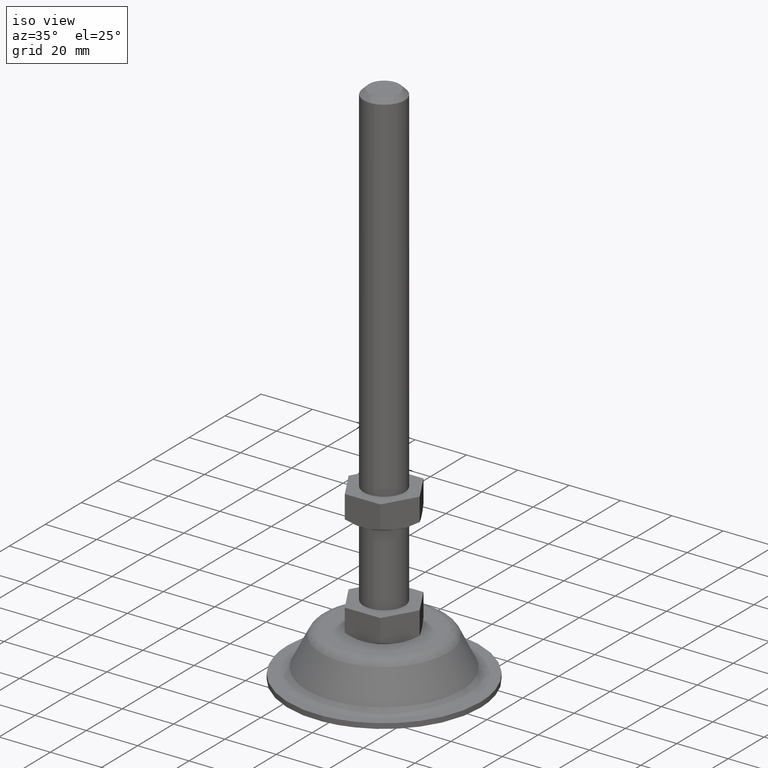
[diagram: clean part render]
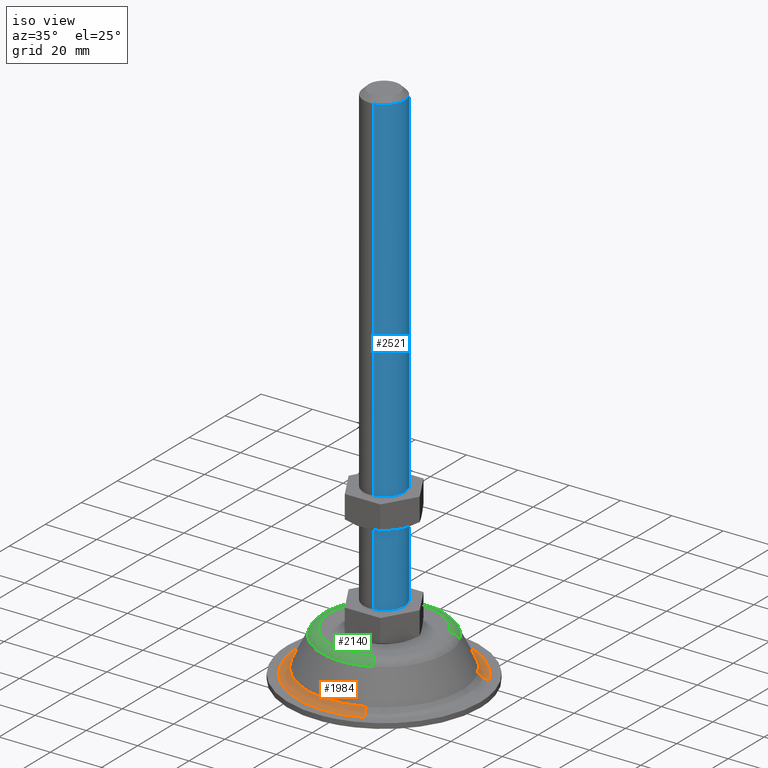
[diagram: same view with three faces highlighted in distinct colors, each labeled with its STEP entity id]
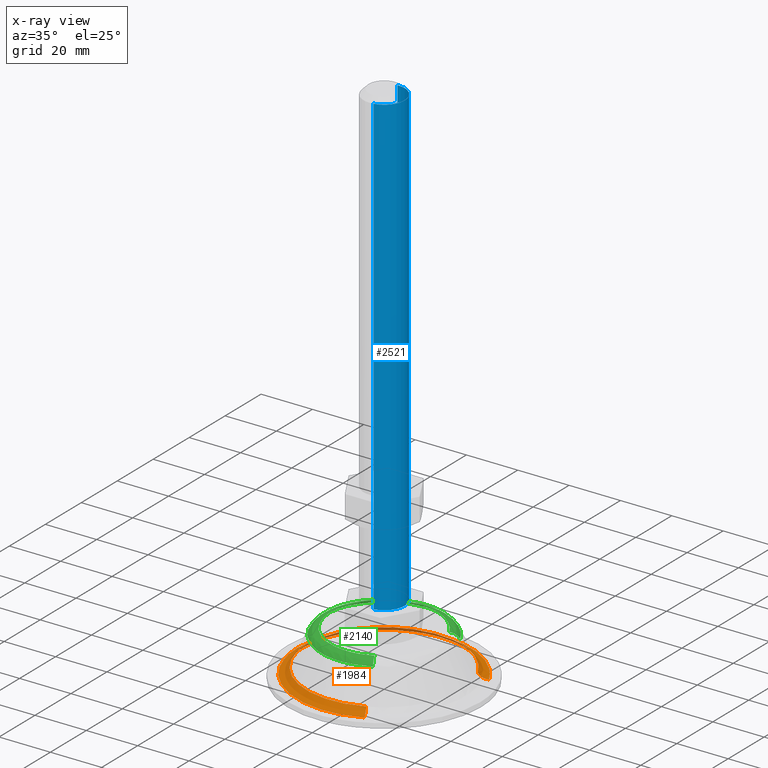
[diagram: x-ray of the same camera — body ghosted, the three highlighted faces saturated]
A machine part, iso view with three faces highlighted in distinct colors.
The next image is the same camera in x-ray (body ghosted, the three faces saturated) — at least one of them is partly hidden behind the body in this view.
Their STEP definitions:

[orange] entity #1984 — the highlighted face is a freeform B-spline surface patch.
#1355=CARTESIAN_POINT('',(13.517878416640830,26.992745340561729,4.237050447106185));
#1356=VERTEX_POINT('',#1355);
#1357=CARTESIAN_POINT('',(26.811445478444831,13.873994691445080,4.237050466238785));
#1358=VERTEX_POINT('',#1357);
#1359=CARTESIAN_POINT('',(13.517878416640825,26.992745340561740,4.237050447106186));
#1360=CARTESIAN_POINT('',(22.298365194898459,22.595506313299008,4.237050467483267));
#1361=CARTESIAN_POINT('',(26.811445478444828,13.873994691445080,4.237050466238785));
#1369=(BOUNDED_CURVE()B_SPLINE_CURVE(2,(#1359,#1360,#1361),.UNSPECIFIED.,.F.,.U.)B_SPLINE_CURVE_WITH_KNOTS((3,3),(0.326127053188864,0.421825371002433),.UNSPECIFIED.)CURVE()GEOMETRIC_REPRESENTATION_ITEM()RATIONAL_B_SPLINE_CURVE((0.875940413655476,0.832104291880675,0.874103860135585))REPRESENTATION_ITEM(''));
#1370=EDGE_CURVE('',#1356,#1358,#1369,.T.);
#1456=CARTESIAN_POINT('',(-8.573977500285421,28.945262947459369,4.237050468563046));
#1457=VERTEX_POINT('',#1456);
#1463=CARTESIAN_POINT('',(-30.188430520198551,0.0,4.237050468566710));
#1464=VERTEX_POINT('',#1463);
#1465=CARTESIAN_POINT('',(-30.188430520198551,0.0,4.237050468566710));
#1466=CARTESIAN_POINT('',(-30.188430520198551,22.542770276702317,4.237050468566709));
#1467=CARTESIAN_POINT('',(-8.573977500285421,28.945262947459366,4.237050468563046));
#1475=(BOUNDED_CURVE()B_SPLINE_CURVE(2,(#1465,#1466,#1467),.UNSPECIFIED.,.F.,.U.)B_SPLINE_CURVE_WITH_KNOTS((3,3),(0.0,0.201641517065248),.UNSPECIFIED.)CURVE()GEOMETRIC_REPRESENTATION_ITEM()RATIONAL_B_SPLINE_CURVE((1.0,0.763762268081328,0.908607213379730))REPRESENTATION_ITEM(''));
#1476=EDGE_CURVE('',#1464,#1457,#1475,.T.);
#1478=CARTESIAN_POINT('',(12.317877356918480,-27.561045604049490,4.237050465337638));
#1479=VERTEX_POINT('',#1478);
#1480=CARTESIAN_POINT('',(12.317877356918483,-27.561045604049482,4.237050465337638));
#1481=CARTESIAN_POINT('',(6.439147325590271,-30.188430520198555,4.237050468566710));
#1482=CARTESIAN_POINT('',(0.0,-30.188430520198551,4.237050468566710));
#1483=CARTESIAN_POINT('',(-30.188430520198555,-30.188430520198555,4.237050468566710));
#1484=CARTESIAN_POINT('',(-30.188430520198551,0.0,4.237050468566710));
#1492=(BOUNDED_CURVE()B_SPLINE_CURVE(2,(#1480,#1481,#1482,#1483,#1484),.UNSPECIFIED.,.F.,.U.)B_SPLINE_CURVE_WITH_KNOTS((3,2,3),(0.680709483576538,0.750000000000000,1.0),.UNSPECIFIED.)CURVE()GEOMETRIC_REPRESENTATION_ITEM()RATIONAL_B_SPLINE_CURVE((0.882641638330957,0.918821110445944,1.0,0.707106781186547,1.0))REPRESENTATION_ITEM(''));
#1493=EDGE_CURVE('',#1479,#1464,#1492,.T.);
#1540=CARTESIAN_POINT('',(-8.573977500285421,28.945262947459366,4.237050468563046));
#1541=CARTESIAN_POINT('',(-4.377114109933091,30.188430520198555,4.237050468566710));
#1542=CARTESIAN_POINT('',(0.0,30.188430520198551,4.237050468566710));
#1543=CARTESIAN_POINT('',(7.136676151169519,30.188430520198551,4.237050468566710));
#1544=CARTESIAN_POINT('',(13.517878416640833,26.992745340561736,4.237050447106185));
#1552=(BOUNDED_CURVE()B_SPLINE_CURVE(2,(#1540,#1541,#1542,#1543,#1544),.UNSPECIFIED.,.F.,.U.)B_SPLINE_CURVE_WITH_KNOTS((3,2,3),(0.201641517065248,0.250000000000000,0.326127053188864),.UNSPECIFIED.)CURVE()GEOMETRIC_REPRESENTATION_ITEM()RATIONAL_B_SPLINE_CURVE((0.908607213379730,0.943344513105220,1.0,0.910811609410923,0.875940413655476))REPRESENTATION_ITEM(''));
#1553=EDGE_CURVE('',#1457,#1356,#1552,.T.);
#1887=CARTESIAN_POINT('',(13.868563357608258,-31.030679725982115,2.005508355514911));
#1888=CARTESIAN_POINT('',(-15.435365784082222,-44.127505239221321,2.005508355514911));
#1889=CARTESIAN_POINT('',(-30.186713145655364,-15.620578840823697,2.005508355514911));
#1890=CARTESIAN_POINT('',(-45.807291986479058,14.566134304831667,2.005508355514911));
#1891=CARTESIAN_POINT('',(-15.620578840823697,30.186713145655364,2.005508355514911));
#1892=CARTESIAN_POINT('',(14.566134304831666,45.807291986479072,2.005508355514911));
#1893=CARTESIAN_POINT('',(30.186713145655364,15.620578840823697,2.005508355514911));
#1894=CARTESIAN_POINT('',(12.730357882329253,-28.483963915914732,1.858963620420696));
#1895=CARTESIAN_POINT('',(-14.168571423674409,-40.505921173260319,1.858963620420695));
#1896=CARTESIAN_POINT('',(-27.709262432333098,-14.338583878173209,1.858963620420696));
#1897=CARTESIAN_POINT('',(-42.047846310506294,13.370678554159884,1.858963620420695));
#1898=CARTESIAN_POINT('',(-14.338583878173209,27.709262432333098,1.858963620420696));
#1899=CARTESIAN_POINT('',(13.370678554159882,42.047846310506294,1.858963620420695));
#1900=CARTESIAN_POINT('',(27.709262432333098,14.338583878173209,1.858963620420696));
#1901=CARTESIAN_POINT('',(12.282242370426843,-27.481312915120213,4.427354544556725));
#1902=CARTESIAN_POINT('',(-13.669830013956551,-39.080090747327844,4.427354544556723));
#1903=CARTESIAN_POINT('',(-26.733881344536748,-13.833857937715386,4.427354544556725));
#1904=CARTESIAN_POINT('',(-40.567739282252127,12.900023406821353,4.427354544556725));
#1905=CARTESIAN_POINT('',(-13.833857937715397,26.733881344536748,4.427354544556725));
#1906=CARTESIAN_POINT('',(12.900023406821353,40.567739282252127,4.427354544556725));
#1907=CARTESIAN_POINT('',(26.733881344536748,13.833857937715397,4.427354544556725));
#1915=(BOUNDED_SURFACE()B_SPLINE_SURFACE(2,2,((#1887,#1894,#1901),(#1888,#1895,#1902),(#1889,#1896,#1903),(#1890,#1897,#1904),(#1891,#1898,#1905),(#1892,#1899,#1906),(#1893,#1900,#1907)),.UNSPECIFIED.,.F.,.F.,.U.)B_SPLINE_SURFACE_WITH_KNOTS((3,2,2,3),(3,3),(0.0,54.061945841300883,110.376472759322600,166.690999677344390),(0.0,5.033719472252810),.UNSPECIFIED.)GEOMETRIC_REPRESENTATION_ITEM()RATIONAL_B_SPLINE_SURFACE(((0.898933571987331,0.737985855779478,0.901312929656294),(0.661043326759624,0.542688181205107,0.662793020572444),(0.919619680268002,0.754968262264206,0.922053791315759),(0.650269312030109,0.533843177827644,0.651990488458139),(0.919619680268002,0.754968262264206,0.922053791315759),(0.650269312030109,0.533843177827644,0.651990488458139),(0.919619680268002,0.754968262264206,0.922053791315759)))REPRESENTATION_ITEM('')SURFACE());
#1916=CARTESIAN_POINT('',(13.782938127036390,-30.839094696865100,2.000000000000201));
#1917=VERTEX_POINT('',#1916);
#1918=CARTESIAN_POINT('',(-33.778974900876548,0.0,2.000000000000200));
#1919=VERTEX_POINT('',#1918);
#1920=CARTESIAN_POINT('',(13.782938127036397,-30.839094696865104,2.000000000000200));
#1921=CARTESIAN_POINT('',(7.205005101256055,-33.778974900876541,2.000000000000200));
#1922=CARTESIAN_POINT('',(0.0,-33.778974900876548,2.000000000000200));
#1923=CARTESIAN_POINT('',(-33.778974900876555,-33.778974900876555,2.000000000000199));
#1924=CARTESIAN_POINT('',(-33.778974900876548,0.0,2.000000000000200));
#1932=(BOUNDED_CURVE()B_SPLINE_CURVE(2,(#1920,#1921,#1922,#1923,#1924),.UNSPECIFIED.,.F.,.U.)B_SPLINE_CURVE_WITH_KNOTS((3,2,3),(0.680709483575723,0.750000000000000,1.0),.UNSPECIFIED.)CURVE()GEOMETRIC_REPRESENTATION_ITEM()RATIONAL_B_SPLINE_CURVE((0.882641638330106,0.918821110444989,1.0,0.707106781186548,1.0))REPRESENTATION_ITEM(''));
#1933=EDGE_CURVE('',#1917,#1919,#1932,.T.);
#1934=ORIENTED_EDGE('',*,*,#1933,.F.);
#1935=CARTESIAN_POINT('',(13.782938127036395,-30.839094696865093,2.000000000000201));
#1936=CARTESIAN_POINT('',(12.766055532007075,-28.563836813024508,2.000000004023359));
#1937=CARTESIAN_POINT('',(12.317877356918480,-27.561045604049486,4.237050465337639));
#1945=(BOUNDED_CURVE()B_SPLINE_CURVE(2,(#1935,#1936,#1937),.UNSPECIFIED.,.F.,.U.)B_SPLINE_CURVE_WITH_KNOTS((3,3),(-1.645059918489039,-0.344443062699389),.UNSPECIFIED.)CURVE()GEOMETRIC_REPRESENTATION_ITEM()RATIONAL_B_SPLINE_CURVE((0.884983933083280,0.752043508673971,0.887147264110127))REPRESENTATION_ITEM(''));
#1946=EDGE_CURVE('',#1917,#1479,#1945,.T.);
#1947=ORIENTED_EDGE('',*,*,#1946,.T.);
#1948=ORIENTED_EDGE('',*,*,#1493,.T.);
#1949=ORIENTED_EDGE('',*,*,#1476,.T.);
#1950=ORIENTED_EDGE('',*,*,#1553,.T.);
#1951=ORIENTED_EDGE('',*,*,#1370,.T.);
#1952=CARTESIAN_POINT('',(30.000338812921282,15.524136576821681,2.000000000000201));
#1953=VERTEX_POINT('',#1952);
#1954=CARTESIAN_POINT('',(30.000338812921278,15.524136576821679,2.000000000000201));
#1955=CARTESIAN_POINT('',(27.786962961888104,14.378791211844526,2.000000000150779));
#1956=CARTESIAN_POINT('',(26.811445478444828,13.873994691445091,4.237050466238785));
#1964=(BOUNDED_CURVE()B_SPLINE_CURVE(2,(#1954,#1955,#1956),.UNSPECIFIED.,.F.,.U.)B_SPLINE_CURVE_WITH_KNOTS((3,3),(-1.645059920397666,-0.344443062081343),.UNSPECIFIED.)CURVE()GEOMETRIC_REPRESENTATION_ITEM()RATIONAL_B_SPLINE_CURVE((0.905349035017068,0.769349407237079,0.907562147986131))REPRESENTATION_ITEM(''));
#1965=EDGE_CURVE('',#1953,#1358,#1964,.T.);
#1966=ORIENTED_EDGE('',*,*,#1965,.F.);
#1967=CARTESIAN_POINT('',(-33.778974900876548,0.0,2.000000000000200));
#1968=CARTESIAN_POINT('',(-33.778974900876555,33.778974900876555,2.000000000000199));
#1969=CARTESIAN_POINT('',(0.0,33.778974900876548,2.000000000000200));
#1970=CARTESIAN_POINT('',(20.554092052395141,33.778974900876548,2.000000000000200));
#1971=CARTESIAN_POINT('',(30.000338812921271,15.524136576821681,2.000000000000201));
#1979=(BOUNDED_CURVE()B_SPLINE_CURVE(2,(#1967,#1968,#1969,#1970,#1971),.UNSPECIFIED.,.F.,.U.)B_SPLINE_CURVE_WITH_KNOTS((3,2,3),(0.0,0.250000000000000,0.421825371003232),.UNSPECIFIED.)CURVE()GEOMETRIC_REPRESENTATION_ITEM()RATIONAL_B_SPLINE_CURVE((1.0,0.707106781186548,1.0,0.798694056052191,0.874103860136287))REPRESENTATION_ITEM(''));
#1980=EDGE_CURVE('',#1919,#1953,#1979,.T.);
#1981=ORIENTED_EDGE('',*,*,#1980,.F.);
#1982=EDGE_LOOP('',(#1934,#1947,#1948,#1949,#1950,#1951,#1966,#1981));
#1983=FACE_OUTER_BOUND('',#1982,.T.);
#1984=ADVANCED_FACE('',(#1983),#1915,.F.);

[blue] entity #2521 — the highlighted face is a freeform B-spline surface patch.
#2328=CARTESIAN_POINT('',(1.407112721230247,-7.875279918183987,205.999999999999890));
#2329=VERTEX_POINT('',#2328);
#2362=CARTESIAN_POINT('',(-0.488388316792085,7.985078387343545,206.0));
#2363=VERTEX_POINT('',#2362);
#2377=CARTESIAN_POINT('',(-0.488388316792081,7.985078387343545,28.0));
#2378=VERTEX_POINT('',#2377);
#2379=CARTESIAN_POINT('',(-0.488388316792085,7.985078387343545,206.0));
#2380=CARTESIAN_POINT('',(-0.488388316792081,7.985078387343545,28.0));
#2381=QUASI_UNIFORM_CURVE('',1,(#2379,#2380),.UNSPECIFIED.,.F.,.U.);
#2382=EDGE_CURVE('',#2363,#2378,#2381,.T.);
#2399=CARTESIAN_POINT('',(1.407112721230249,-7.875279918183987,27.999999999999989));
#2400=VERTEX_POINT('',#2399);
#2416=CARTESIAN_POINT('',(1.407112721230247,-7.875279918183987,205.999999999999890));
#2417=CARTESIAN_POINT('',(1.407112721230249,-7.875279918183987,27.999999999999989));
#2418=QUASI_UNIFORM_CURVE('',1,(#2416,#2417),.UNSPECIFIED.,.F.,.U.);
#2419=EDGE_CURVE('',#2329,#2400,#2418,.T.);
#2424=CARTESIAN_POINT('',(-0.488388316278856,7.985078387374934,210.450000000000100));
#2425=CARTESIAN_POINT('',(7.496690071096078,8.473466703653790,210.450000000000070));
#2426=CARTESIAN_POINT('',(7.985078387374934,0.488388316278856,210.450000000000100));
#2427=CARTESIAN_POINT('',(8.419984129802099,-6.622257718131118,210.450000000000070));
#2428=CARTESIAN_POINT('',(1.407112720920958,-7.875279918239248,210.450000000000070));
#2429=CARTESIAN_POINT('',(-0.488388316278856,7.985078387374934,23.438749999999999));
#2430=CARTESIAN_POINT('',(7.496690071096078,8.473466703653790,23.438749999999995));
#2431=CARTESIAN_POINT('',(7.985078387374934,0.488388316278856,23.438749999999999));
#2432=CARTESIAN_POINT('',(8.419984129802099,-6.622257718131118,23.438750000000002));
#2433=CARTESIAN_POINT('',(1.407112720920958,-7.875279918239248,23.438749999999995));
#2441=(BOUNDED_SURFACE()B_SPLINE_SURFACE(2,1,((#2424,#2429),(#2425,#2430),(#2426,#2431),(#2427,#2432),(#2428,#2433)),.UNSPECIFIED.,.F.,.F.,.U.)B_SPLINE_SURFACE_WITH_KNOTS((3,2,3),(2,2),(0.0,13.254833995939039,25.449281272202949),(0.0,187.011250000000100),.UNSPECIFIED.)GEOMETRIC_REPRESENTATION_ITEM()RATIONAL_B_SPLINE_SURFACE(((1.0,1.0),(0.707106781186548,0.707106781186548),(1.0,1.0),(0.730538238691624,0.730538238691624),(0.956886118190660,0.956886118190660)))REPRESENTATION_ITEM('')SURFACE());
#2442=CARTESIAN_POINT('',(8.0,0.0,206.0));
#2443=VERTEX_POINT('',#2442);
#2444=CARTESIAN_POINT('',(8.0,0.0,206.0));
#2445=CARTESIAN_POINT('',(8.0,-6.697298226348780,206.000000000000060));
#2446=CARTESIAN_POINT('',(1.407112721230247,-7.875279918183987,205.999999999999940));
#2454=(BOUNDED_CURVE()B_SPLINE_CURVE(2,(#2444,#2445,#2446),.UNSPECIFIED.,.F.,.U.)B_SPLINE_CURVE_WITH_KNOTS((3,3),(0.0,0.219772409014323),.UNSPECIFIED.)CURVE()GEOMETRIC_REPRESENTATION_ITEM()RATIONAL_B_SPLINE_CURVE((1.0,0.742520606869633,0.937736145737720))REPRESENTATION_ITEM(''));
#2455=EDGE_CURVE('',#2443,#2329,#2454,.T.);
#2456=ORIENTED_EDGE('',*,*,#2455,.T.);
#2457=ORIENTED_EDGE('',*,*,#2419,.T.);
#2458=CARTESIAN_POINT('',(8.0,0.0,28.0));
#2459=VERTEX_POINT('',#2458);
#2460=CARTESIAN_POINT('',(8.0,0.0,28.0));
#2461=CARTESIAN_POINT('',(8.0,-6.697298226348780,28.0));
#2462=CARTESIAN_POINT('',(1.407112721230248,-7.875279918183987,27.999999999999993));
#2470=(BOUNDED_CURVE()B_SPLINE_CURVE(2,(#2460,#2461,#2462),.UNSPECIFIED.,.F.,.U.)B_SPLINE_CURVE_WITH_KNOTS((3,3),(0.0,0.219772409014323),.UNSPECIFIED.)CURVE()GEOMETRIC_REPRESENTATION_ITEM()RATIONAL_B_SPLINE_CURVE((1.0,0.742520606869633,0.937736145737720))REPRESENTATION_ITEM(''));
#2471=EDGE_CURVE('',#2459,#2400,#2470,.T.);
#2472=ORIENTED_EDGE('',*,*,#2471,.F.);
#2473=CARTESIAN_POINT('',(-0.488388316792081,7.985078387343545,28.000000000000004));
#2474=CARTESIAN_POINT('',(-0.244422106903376,8.0,28.0));
#2475=CARTESIAN_POINT('',(0.0,8.0,28.0));
#2476=CARTESIAN_POINT('',(8.0,8.0,27.999999999999996));
#2477=CARTESIAN_POINT('',(8.0,0.0,28.0));
#2485=(BOUNDED_CURVE()B_SPLINE_CURVE(2,(#2473,#2474,#2475,#2476,#2477),.UNSPECIFIED.,.F.,.U.)B_SPLINE_CURVE_WITH_KNOTS((3,2,3),(0.739332962219788,0.750000000000000,1.0),.UNSPECIFIED.)CURVE()GEOMETRIC_REPRESENTATION_ITEM()RATIONAL_B_SPLINE_CURVE((0.976072041625665,0.987502787877396,1.0,0.707106781186548,1.0))REPRESENTATION_ITEM(''));
#2486=EDGE_CURVE('',#2378,#2459,#2485,.T.);
#2487=ORIENTED_EDGE('',*,*,#2486,.F.);
#2488=ORIENTED_EDGE('',*,*,#2382,.F.);
#2489=CARTESIAN_POINT('',(0.993024017993458,7.938129710607391,205.999999999828790));
#2490=VERTEX_POINT('',#2489);
#2491=CARTESIAN_POINT('',(-0.488388316792085,7.985078387343545,206.0));
#2492=CARTESIAN_POINT('',(-0.244422106903379,8.0,206.000000000000030));
#2493=CARTESIAN_POINT('',(0.0,8.0,206.0));
#2494=CARTESIAN_POINT('',(0.498439421617135,8.0,205.999999999999970));
#2495=CARTESIAN_POINT('',(0.993024017993458,7.938129710607391,205.999999999828840));
#2503=(BOUNDED_CURVE()B_SPLINE_CURVE(2,(#2491,#2492,#2493,#2494,#2495),.UNSPECIFIED.,.F.,.U.)B_SPLINE_CURVE_WITH_KNOTS((3,2,3),(0.739332962219788,0.750000000000000,0.771473929027365),.UNSPECIFIED.)CURVE()GEOMETRIC_REPRESENTATION_ITEM()RATIONAL_B_SPLINE_CURVE((0.976072041625665,0.987502787877396,1.0,0.974841727226414,0.954005430164757))REPRESENTATION_ITEM(''));
#2504=EDGE_CURVE('',#2363,#2490,#2503,.T.);
#2505=ORIENTED_EDGE('',*,*,#2504,.T.);
#2506=CARTESIAN_POINT('',(0.993024017993458,7.938129710607391,205.999999999828840));
#2507=CARTESIAN_POINT('',(8.0,7.061588798810710,206.000000000000030));
#2508=CARTESIAN_POINT('',(8.0,0.0,206.0));
#2516=(BOUNDED_CURVE()B_SPLINE_CURVE(2,(#2506,#2507,#2508),.UNSPECIFIED.,.F.,.U.)B_SPLINE_CURVE_WITH_KNOTS((3,3),(0.771473929027365,1.0),.UNSPECIFIED.)CURVE()GEOMETRIC_REPRESENTATION_ITEM()RATIONAL_B_SPLINE_CURVE((0.954005430164757,0.732265053960133,1.0))REPRESENTATION_ITEM(''));
#2517=EDGE_CURVE('',#2490,#2443,#2516,.T.);
#2518=ORIENTED_EDGE('',*,*,#2517,.T.);
#2519=EDGE_LOOP('',(#2456,#2457,#2472,#2487,#2488,#2505,#2518));
#2520=FACE_OUTER_BOUND('',#2519,.T.);
#2521=ADVANCED_FACE('',(#2520),#2441,.T.);

[green] entity #2140 — the highlighted face is a freeform B-spline surface patch.
#1372=CARTESIAN_POINT('',(10.983786301912639,21.932624189596130,15.762949531503510));
#1373=VERTEX_POINT('',#1372);
#1379=CARTESIAN_POINT('',(21.925249910871980,10.998499066013810,15.762949531871341));
#1380=VERTEX_POINT('',#1379);
#1381=CARTESIAN_POINT('',(10.983786301912641,21.932624189596130,15.762949531503510));
#1382=CARTESIAN_POINT('',(18.270965896664514,18.283228534836347,15.762949531635718));
#1383=CARTESIAN_POINT('',(21.925249910871987,10.998499066013810,15.762949531871341));
#1391=(BOUNDED_CURVE()B_SPLINE_CURVE(2,(#1381,#1382,#1383),.UNSPECIFIED.,.F.,.U.)B_SPLINE_CURVE_WITH_KNOTS((3,3),(0.326127052926136,0.423769062114753),.UNSPECIFIED.)CURVE()GEOMETRIC_REPRESENTATION_ITEM()RATIONAL_B_SPLINE_CURVE((0.875940413896170,0.831213953432399,0.875845342761837))REPRESENTATION_ITEM(''));
#1392=EDGE_CURVE('',#1373,#1380,#1391,.T.);
#1409=CARTESIAN_POINT('',(10.998499066041690,-21.925249911014529,15.762949531586390));
#1410=VERTEX_POINT('',#1409);
#1424=CARTESIAN_POINT('',(-24.529238988803549,0.0,15.762949531433700));
#1425=VERTEX_POINT('',#1424);
#1426=CARTESIAN_POINT('',(10.998499066041688,-21.925249911014525,15.762949531586390));
#1427=CARTESIAN_POINT('',(5.807507917959460,-24.529238988803549,15.762949531433701));
#1428=CARTESIAN_POINT('',(0.0,-24.529238988803549,15.762949531433700));
#1429=CARTESIAN_POINT('',(-24.529238988803549,-24.529238988803549,15.762949531433700));
#1430=CARTESIAN_POINT('',(-24.529238988803549,0.0,15.762949531433700));
#1438=(BOUNDED_CURVE()B_SPLINE_CURVE(2,(#1426,#1427,#1428,#1429,#1430),.UNSPECIFIED.,.F.,.U.)B_SPLINE_CURVE_WITH_KNOTS((3,2,3),(0.673769062115245,0.750000000000000,1.0),.UNSPECIFIED.)CURVE()GEOMETRIC_REPRESENTATION_ITEM()RATIONAL_B_SPLINE_CURVE((0.875845342762287,0.910689900919063,1.0,0.707106781186547,1.0))REPRESENTATION_ITEM(''));
#1439=EDGE_CURVE('',#1410,#1425,#1438,.T.);
#1441=CARTESIAN_POINT('',(-6.966680266768331,23.519118423755248,15.762949531426941));
#1442=VERTEX_POINT('',#1441);
#1443=CARTESIAN_POINT('',(-24.529238988803549,0.0,15.762949531433700));
#1444=CARTESIAN_POINT('',(-24.529238988803549,18.316851524160139,15.762949531433705));
#1445=CARTESIAN_POINT('',(-6.966680266768331,23.519118423755252,15.762949531426941));
#1453=(BOUNDED_CURVE()B_SPLINE_CURVE(2,(#1443,#1444,#1445),.UNSPECIFIED.,.F.,.U.)B_SPLINE_CURVE_WITH_KNOTS((3,3),(0.0,0.201641517064962),.UNSPECIFIED.)CURVE()GEOMETRIC_REPRESENTATION_ITEM()RATIONAL_B_SPLINE_CURVE((1.0,0.763762268081663,0.908607213379319))REPRESENTATION_ITEM(''));
#1454=EDGE_CURVE('',#1425,#1442,#1453,.T.);
#1556=CARTESIAN_POINT('',(-6.966680266768331,23.519118423755252,15.762949531426941));
#1557=CARTESIAN_POINT('',(-3.556570389197576,24.529238988803552,15.762949531433696));
#1558=CARTESIAN_POINT('',(0.0,24.529238988803549,15.762949531433700));
#1559=CARTESIAN_POINT('',(5.798818660588829,24.529238988803559,15.762949531433698));
#1560=CARTESIAN_POINT('',(10.983786301912641,21.932624189596130,15.762949531503512));
#1568=(BOUNDED_CURVE()B_SPLINE_CURVE(2,(#1556,#1557,#1558,#1559,#1560),.UNSPECIFIED.,.F.,.U.)B_SPLINE_CURVE_WITH_KNOTS((3,2,3),(0.201641517064962,0.250000000000000,0.326127052926136),.UNSPECIFIED.)CURVE()GEOMETRIC_REPRESENTATION_ITEM()RATIONAL_B_SPLINE_CURVE((0.908607213379319,0.943344513104885,1.0,0.910811609718728,0.875940413896170))REPRESENTATION_ITEM(''));
#1569=EDGE_CURVE('',#1442,#1373,#1568,.T.);
#2043=CARTESIAN_POINT('',(9.294642899871809,-18.528652608911848,17.994512284984971));
#2044=CARTESIAN_POINT('',(-9.234009709040031,-27.823295508783666,17.994512284984971));
#2045=CARTESIAN_POINT('',(-18.528652608911848,-9.294642899871811,17.994512284984971));
#2046=CARTESIAN_POINT('',(-27.823295508783666,9.234009709040031,17.994512284984971));
#2047=CARTESIAN_POINT('',(-9.294642899871812,18.528652608911848,17.994512284984971));
#2048=CARTESIAN_POINT('',(9.234009709040029,27.823295508783666,17.994512284984971));
#2049=CARTESIAN_POINT('',(18.528652608911838,9.294642899871812,17.994512284984971));
#2050=CARTESIAN_POINT('',(10.545410726679879,-21.022028934068988,18.140782316382250));
#2051=CARTESIAN_POINT('',(-10.476618207389107,-31.567439660748860,18.140782316382243));
#2052=CARTESIAN_POINT('',(-21.022028934068988,-10.545410726679879,18.140782316382250));
#2053=CARTESIAN_POINT('',(-31.567439660748860,10.476618207389107,18.140782316382243));
#2054=CARTESIAN_POINT('',(-10.545410726679885,21.022028934068988,18.140782316382250));
#2055=CARTESIAN_POINT('',(10.476618207389103,31.567439660748860,18.140782316382243));
#2056=CARTESIAN_POINT('',(21.022028934068988,10.545410726679885,18.140782316382250));
#2057=CARTESIAN_POINT('',(11.037727055620422,-22.003449988207585,15.572285105118571));
#2058=CARTESIAN_POINT('',(-10.965722932587171,-33.041177043828014,15.572285105118565));
#2059=CARTESIAN_POINT('',(-22.003449988207585,-11.037727055620422,15.572285105118571));
#2060=CARTESIAN_POINT('',(-33.041177043828014,10.965722932587168,15.572285105118565));
#2061=CARTESIAN_POINT('',(-11.037727055620433,22.003449988207585,15.572285105118571));
#2062=CARTESIAN_POINT('',(10.965722932587166,33.041177043828014,15.572285105118565));
#2063=CARTESIAN_POINT('',(22.003449988207585,11.037727055620433,15.572285105118571));
#2071=(BOUNDED_SURFACE()B_SPLINE_SURFACE(2,2,((#2043,#2050,#2057),(#2044,#2051,#2058),(#2045,#2052,#2059),(#2046,#2053,#2060),(#2047,#2054,#2061),(#2048,#2055,#2062),(#2049,#2056,#2063)),.UNSPECIFIED.,.F.,.F.,.U.)B_SPLINE_SURFACE_WITH_KNOTS((3,2,2,3),(3,3),(0.0,40.786328124221413,81.572656248442826,122.358984372664200),(0.0,5.033719259317195),.UNSPECIFIED.)GEOMETRIC_REPRESENTATION_ITEM()RATIONAL_B_SPLINE_SURFACE(((0.923693141034011,0.756838403288658,0.922540802781788),(0.653149683760651,0.535165567227809,0.652334857568283),(0.923693141034011,0.756838403288658,0.922540802781788),(0.653149683760651,0.535165567227809,0.652334857568283),(0.923693141034011,0.756838403288658,0.922540802781788),(0.653149683760651,0.535165567227809,0.652334857568283),(0.923693141034011,0.756838403288658,0.922540802781788)))REPRESENTATION_ITEM('')SURFACE());
#2072=CARTESIAN_POINT('',(9.388559232774274,-18.715872614805569,18.000000000000099));
#2073=VERTEX_POINT('',#2072);
#2074=CARTESIAN_POINT('',(-20.938694608125552,0.0,18.0));
#2075=VERTEX_POINT('',#2074);
#2076=CARTESIAN_POINT('',(9.388559232774274,-18.715872614805562,18.000000000000107));
#2077=CARTESIAN_POINT('',(4.957415710828611,-20.938694608125552,18.000000000000007));
#2078=CARTESIAN_POINT('',(0.0,-20.938694608125552,18.0));
#2079=CARTESIAN_POINT('',(-20.938694608125555,-20.938694608125555,18.000000000000007));
#2080=CARTESIAN_POINT('',(-20.938694608125552,0.0,18.0));
#2088=(BOUNDED_CURVE()B_SPLINE_CURVE(2,(#2076,#2077,#2078,#2079,#2080),.UNSPECIFIED.,.F.,.U.)B_SPLINE_CURVE_WITH_KNOTS((3,2,3),(0.673769062109912,0.750000000000000,1.0),.UNSPECIFIED.)CURVE()GEOMETRIC_REPRESENTATION_ITEM()RATIONAL_B_SPLINE_CURVE((0.875845342757413,0.910689900912815,1.0,0.707106781186548,1.0))REPRESENTATION_ITEM(''));
#2089=EDGE_CURVE('',#2073,#2075,#2088,.T.);
#2090=ORIENTED_EDGE('',*,*,#2089,.T.);
#2091=CARTESIAN_POINT('',(18.715872619809911,9.388559235716230,18.000000000000099));
#2092=VERTEX_POINT('',#2091);
#2093=CARTESIAN_POINT('',(-20.938694608125552,0.0,18.0));
#2094=CARTESIAN_POINT('',(-20.938694608125555,20.938694608125555,18.000000000000007));
#2095=CARTESIAN_POINT('',(0.0,20.938694608125552,18.0));
#2096=CARTESIAN_POINT('',(12.921906577570576,20.938694608125545,18.000000000000007));
#2097=CARTESIAN_POINT('',(18.715872619809911,9.388559235716230,18.000000000000092));
#2105=(BOUNDED_CURVE()B_SPLINE_CURVE(2,(#2093,#2094,#2095,#2096,#2097),.UNSPECIFIED.,.F.,.U.)B_SPLINE_CURVE_WITH_KNOTS((3,2,3),(0.0,0.250000000000000,0.423769062104207),.UNSPECIFIED.)CURVE()GEOMETRIC_REPRESENTATION_ITEM()RATIONAL_B_SPLINE_CURVE((1.0,0.707106781186548,1.0,0.796416880280416,0.875845342752197))REPRESENTATION_ITEM(''));
#2106=EDGE_CURVE('',#2075,#2092,#2105,.T.);
#2107=ORIENTED_EDGE('',*,*,#2106,.T.);
#2108=CARTESIAN_POINT('',(18.715872619809904,9.388559235716230,18.000000000000103));
#2109=CARTESIAN_POINT('',(20.943466165962615,10.506000798166077,17.999999983600304));
#2110=CARTESIAN_POINT('',(21.925249910871987,10.998499066013810,15.762949531871335));
#2118=(BOUNDED_CURVE()B_SPLINE_CURVE(2,(#2108,#2109,#2110),.UNSPECIFIED.,.F.,.U.)B_SPLINE_CURVE_WITH_KNOTS((3,3),(-1.657824822891045,-0.347170207750494),.UNSPECIFIED.)CURVE()GEOMETRIC_REPRESENTATION_ITEM()RATIONAL_B_SPLINE_CURVE((0.909224136273326,0.771255055868012,0.908176502070073))REPRESENTATION_ITEM(''));
#2119=EDGE_CURVE('',#2092,#1380,#2118,.T.);
#2120=ORIENTED_EDGE('',*,*,#2119,.T.);
#2121=ORIENTED_EDGE('',*,*,#1392,.F.);
#2122=ORIENTED_EDGE('',*,*,#1569,.F.);
#2123=ORIENTED_EDGE('',*,*,#1454,.F.);
#2124=ORIENTED_EDGE('',*,*,#1439,.F.);
#2125=CARTESIAN_POINT('',(9.388559232774274,-18.715872614805562,18.000000000000099));
#2126=CARTESIAN_POINT('',(10.506000796774689,-20.943466163188898,17.999999990817852));
#2127=CARTESIAN_POINT('',(10.998499066041688,-21.925249911014525,15.762949531586385));
#2135=(BOUNDED_CURVE()B_SPLINE_CURVE(2,(#2125,#2126,#2127),.UNSPECIFIED.,.F.,.U.)B_SPLINE_CURVE_WITH_KNOTS((3,3),(-1.657824826482168,-0.347170207553906),.UNSPECIFIED.)CURVE()GEOMETRIC_REPRESENTATION_ITEM()RATIONAL_B_SPLINE_CURVE((0.909224137029382,0.771255055472160,0.908176502111148))REPRESENTATION_ITEM(''));
#2136=EDGE_CURVE('',#2073,#1410,#2135,.T.);
#2137=ORIENTED_EDGE('',*,*,#2136,.F.);
#2138=EDGE_LOOP('',(#2090,#2107,#2120,#2121,#2122,#2123,#2124,#2137));
#2139=FACE_OUTER_BOUND('',#2138,.T.);
#2140=ADVANCED_FACE('',(#2139),#2071,.T.);